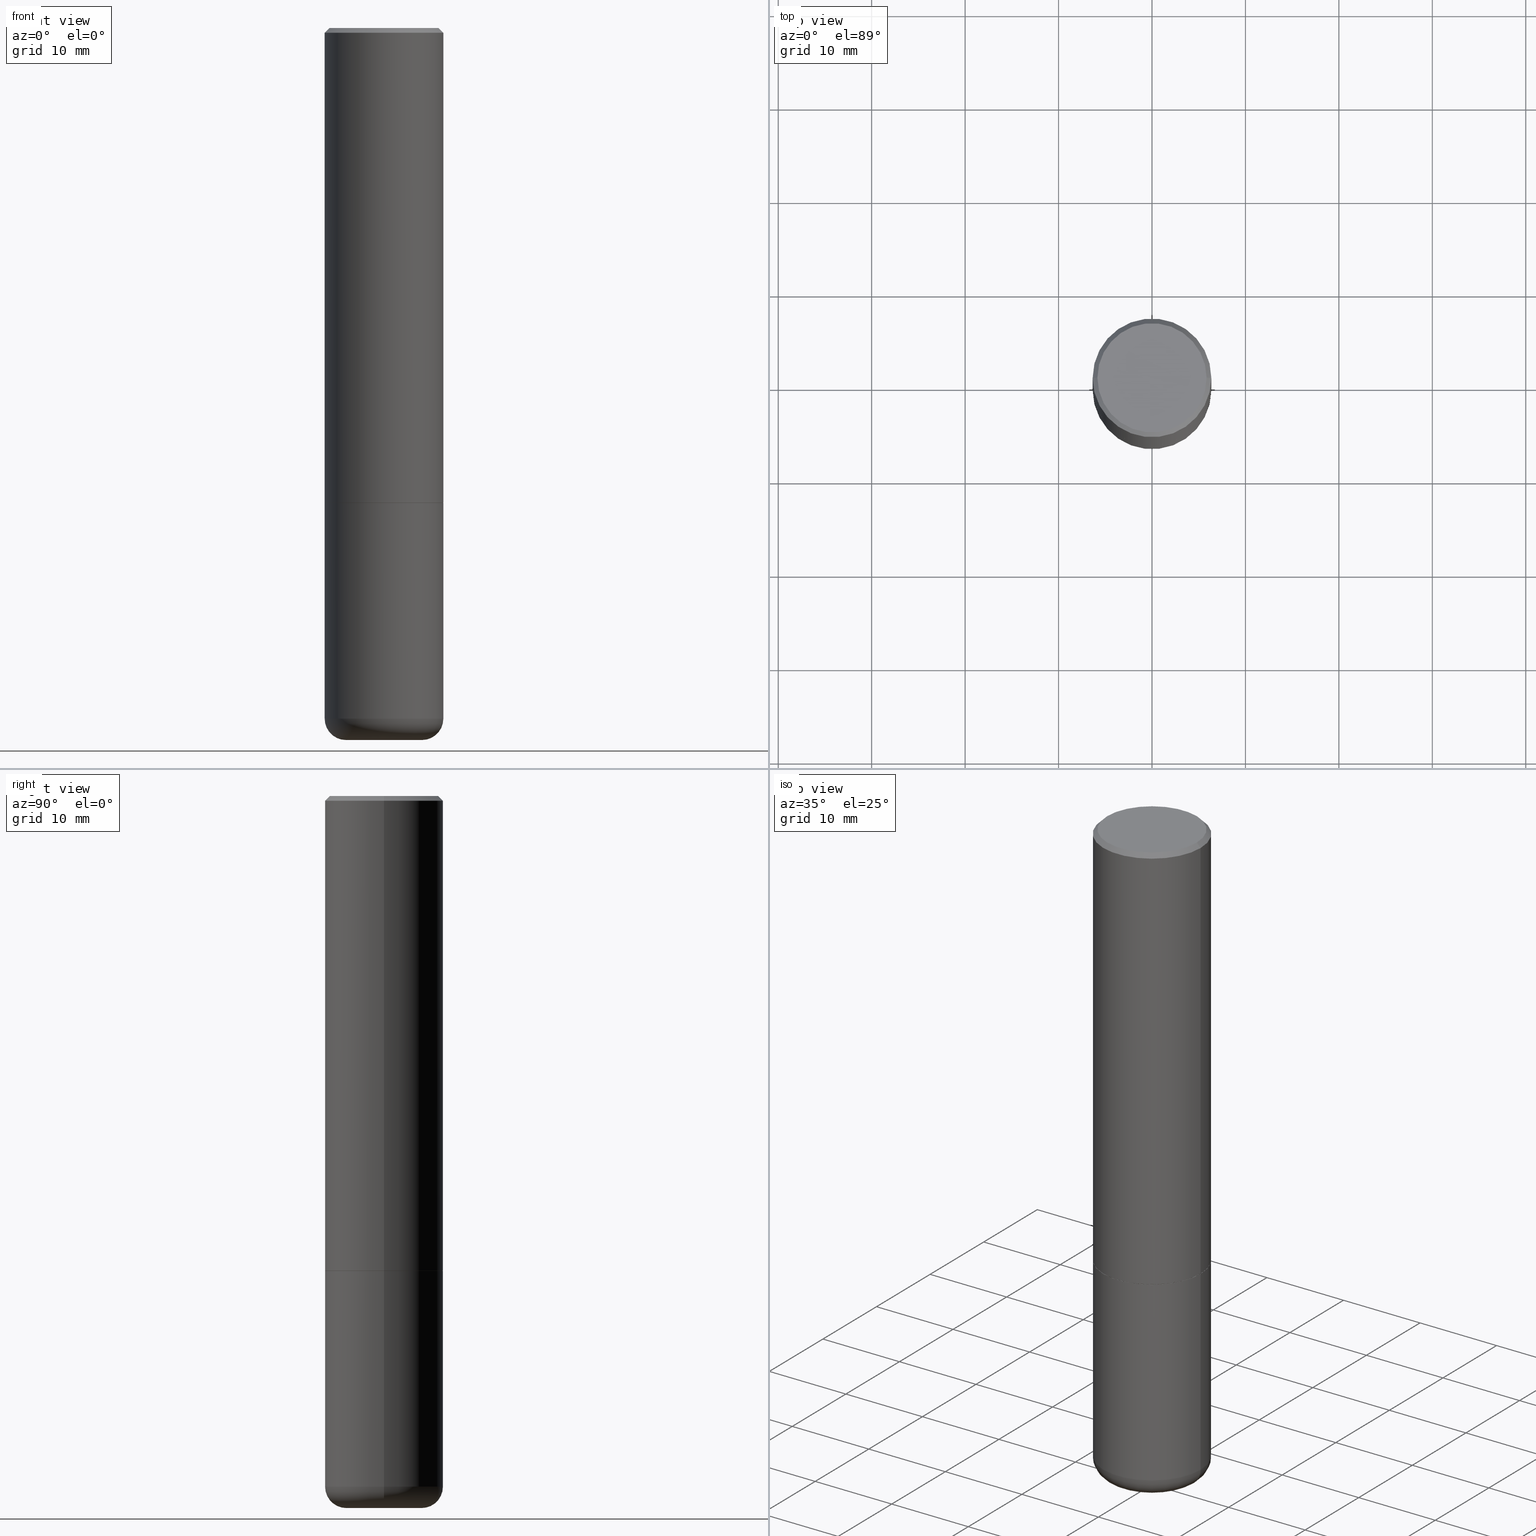
[diagram: canonical four-view strip — front | top / right | iso, engineering-drawing reading convention]
A machine part, canonical four-view strip (front | top / right | iso — engineering-drawing reading convention). The complete STEP part file that produces these views, byte-faithful:
ISO-10303-21;
HEADER;
FILE_DESCRIPTION (( 'STEP AP203' ),
    '1' );
FILE_NAME ('37348.STEP',
    '2024-03-02T00:07:58',
    ( '' ),
    ( '' ),
    'SwSTEP 2.0',
    'SolidWorks 2023',
    '' );
FILE_SCHEMA (( 'CONFIG_CONTROL_DESIGN' ));
ENDSEC;

DATA;
#1 = MANIFOLD_SOLID_BREP ( 'Body-Move/Copy2[1]', #383 ) ;
#2 = CYLINDRICAL_SURFACE ( 'NONE', #398, 0.2500000000000000000 ) ;
#3 = ORIENTED_EDGE ( 'NONE', *, *, #384, .T. ) ;
#4 = EDGE_CURVE ( 'NONE', #299, #172, #190, .T. ) ;
#5 = FACE_OUTER_BOUND ( 'NONE', #71, .T. ) ;
#6 = ORIENTED_EDGE ( 'NONE', *, *, #245, .T. ) ;
#7 = AXIS2_PLACEMENT_3D ( 'NONE', #320, #169, #9 ) ;
#8 = UNCERTAINTY_MEASURE_WITH_UNIT (LENGTH_MEASURE( 1.000000000000000082E-05 ), #261, 'distance_accuracy_value', 'NONE');
#9 = DIRECTION ( 'NONE',  ( 1.000000000000000000, -6.982962677686271444E-15, 0.000000000000000000 ) ) ;
#10 = DIRECTION ( 'NONE',  ( -1.000000000000000000, 6.982962677686266711E-15, 0.000000000000000000 ) ) ;
#11 = ADVANCED_FACE ( 'NONE', ( #219 ), #122, .T. ) ;
#12 = EDGE_LOOP ( 'NONE', ( #262, #78, #205, #334 ) ) ;
#13 = EDGE_LOOP ( 'NONE', ( #403, #67, #195, #254 ) ) ;
#14 = EDGE_CURVE ( 'NONE', #172, #52, #207, .T. ) ;
#15 = AXIS2_PLACEMENT_3D ( 'NONE', #104, #168, #32 ) ;
#16 =( LENGTH_UNIT ( ) NAMED_UNIT ( * ) SI_UNIT ( $, .METRE. ) );
#17 = ORIENTED_EDGE ( 'NONE', *, *, #243, .T. ) ;
#18 = CARTESIAN_POINT ( 'NONE',  ( -0.2500000000000000000, 1.776356839400250465E-15, -1.229733772563726445E-29 ) ) ;
#19 = ORIENTED_EDGE ( 'NONE', *, *, #173, .T. ) ;
#20 = ORIENTED_EDGE ( 'NONE', *, *, #308, .F. ) ;
#21 = CARTESIAN_POINT ( 'NONE',  ( 4.890937612370273754E-29, -6.982962677686291954E-15, -2.000000000000000444 ) ) ;
#22 = DIRECTION ( 'NONE',  ( 1.000000000000000000, -6.982962677686265133E-15, 4.883557194083112340E-29 ) ) ;
#23 = EDGE_CURVE ( 'NONE', #223, #172, #30, .T. ) ;
#24 = SECURITY_CLASSIFICATION_LEVEL ( 'unclassified' ) ;
#25 = DIRECTION ( 'NONE',  ( 0.7071067811865460184, -7.319954787623251312E-15, -0.7071067811865490160 ) ) ;
#26 = DATE_AND_TIME ( #247, #135 ) ;
#27 = CARTESIAN_POINT ( 'NONE',  ( -0.2500000000000002220, -1.748293572161903489E-15, -1.999000000000000110 ) ) ;
#28 = CIRCLE ( 'NONE', #296, 0.08999999999999964972 ) ;
#29 = APPROVAL_PERSON_ORGANIZATION ( #283, #66, #191 ) ;
#30 = LINE ( 'NONE', #381, #265 ) ;
#31 = CARTESIAN_POINT ( 'NONE',  ( -0.2299999999999995381, 1.640996229256271139E-15, 4.268512490100296524E-16 ) ) ;
#32 = DIRECTION ( 'NONE',  ( -1.000000000000000000, 6.982962677686265922E-15, -4.876176775795935793E-29 ) ) ;
#33 = AXIS2_PLACEMENT_3D ( 'NONE', #309, #316, #313 ) ;
#34 = AXIS2_PLACEMENT_3D ( 'NONE', #269, #333, #147 ) ;
#35 = DIRECTION ( 'NONE',  ( -6.982962677686266711E-15, -1.000000000000000000, 3.491481338843145583E-15 ) ) ;
#36 = CARTESIAN_POINT ( 'NONE',  ( 0.2500000000000002220, -8.725211865769017202E-15, -1.999000000000000110 ) ) ;
#37 = ORIENTED_EDGE ( 'NONE', *, *, #365, .T. ) ;
#38 = CARTESIAN_POINT ( 'NONE',  ( 0.1600000000000000033, -1.127748472446335797E-14, -2.910000000000000586 ) ) ;
#39 = EDGE_LOOP ( 'NONE', ( #140, #109, #307, #69 ) ) ;
#40 = CONICAL_SURFACE ( 'NONE', #271, 0.2489999999999999991, 0.7853981633975336552 ) ;
#41 = ADVANCED_BREP_SHAPE_REPRESENTATION ( '37348', ( #1, #264, #311 ), #294 ) ;
#42 = EDGE_CURVE ( 'NONE', #187, #52, #376, .T. ) ;
#43 =( NAMED_UNIT ( * ) PLANE_ANGLE_UNIT ( ) SI_UNIT ( $, .RADIAN. ) );
#44 = CARTESIAN_POINT ( 'NONE',  ( 0.2499999999999998335, -1.190595136545512292E-14, -2.910000000000000586 ) ) ;
#45 = VERTEX_POINT ( 'NONE', #27 ) ;
#46 = AXIS2_PLACEMENT_3D ( 'NONE', #379, #242, #273 ) ;
#47 = AXIS2_PLACEMENT_3D ( 'NONE', #38, #35, #176 ) ;
#48 = APPLICATION_CONTEXT ( 'configuration controlled 3d designs of mechanical parts and assemblies' ) ;
#49 = EDGE_CURVE ( 'NONE', #299, #45, #182, .T. ) ;
#50 =( NAMED_UNIT ( * ) SI_UNIT ( $, .STERADIAN. ) SOLID_ANGLE_UNIT ( ) );
#51 = PERSON ( 'UNSPECIFIED', 'UNSPECIFIED', 'UNSPECIFIED', ('UNSPECIFIED'), ('UNSPECIFIED'), ('UNSPECIFIED') ) ;
#52 = VERTEX_POINT ( 'NONE', #246 ) ;
#53 = ADVANCED_FACE ( 'NONE', ( #351 ), #282, .T. ) ;
#54 = AXIS2_PLACEMENT_3D ( 'NONE', #111, #206, #10 ) ;
#55 = DIRECTION ( 'NONE',  ( -2.445468806185136597E-29, 3.491481338843145583E-15, 1.000000000000000000 ) ) ;
#56 = DIRECTION ( 'NONE',  ( 1.000000000000000000, -6.982962677686268288E-15, 0.000000000000000000 ) ) ;
#57 = DIRECTION ( 'NONE',  ( -2.445468806185136597E-29, 3.491481338843145583E-15, 1.000000000000000000 ) ) ;
#58 = CARTESIAN_POINT ( 'NONE',  ( 0.2500000000000001110, -1.745740669421567467E-15, 1.219044193948984509E-29 ) ) ;
#59 = CIRCLE ( 'NONE', #98, 0.2500000000000000000 ) ;
#60 = DIRECTION ( 'NONE',  ( -2.445468806185136597E-29, 3.491481338843145583E-15, 1.000000000000000000 ) ) ;
#61 = DIRECTION ( 'NONE',  ( 1.000000000000000000, -6.982962677686265133E-15, 4.883557194083112340E-29 ) ) ;
#62 = LINE ( 'NONE', #389, #377 ) ;
#63 = ORIENTED_EDGE ( 'NONE', *, *, #14, .T. ) ;
#64 = CIRCLE ( 'NONE', #417, 0.2500000000000000000 ) ;
#65 = DIRECTION ( 'NONE',  ( -1.000000000000000000, 7.105427357600996337E-15, 0.000000000000000000 ) ) ;
#66 = APPROVAL ( #378, 'UNSPECIFIED' ) ;
#67 = ORIENTED_EDGE ( 'NONE', *, *, #371, .T. ) ;
#68 = DIRECTION ( 'NONE',  ( -2.445468806185136597E-29, 3.491481338843145583E-15, 1.000000000000000000 ) ) ;
#69 = ORIENTED_EDGE ( 'NONE', *, *, #84, .F. ) ;
#70 = FACE_OUTER_BOUND ( 'NONE', #326, .T. ) ;
#71 = EDGE_LOOP ( 'NONE', ( #6, #229 ) ) ;
#72 = CIRCLE ( 'NONE', #46, 0.2500000000000000000 ) ;
#73 = CC_DESIGN_SECURITY_CLASSIFICATION ( #251, ( #89 ) ) ;
#74 = CARTESIAN_POINT ( 'NONE',  ( 4.890937612370273754E-29, -6.982962677686291954E-15, -2.000000000000000444 ) ) ;
#75 = COORDINATED_UNIVERSAL_TIME_OFFSET ( 5, 0, .BEHIND. ) ;
#76 = APPROVAL_ROLE ( '' ) ;
#77 = ADVANCED_FACE ( 'NONE', ( #220 ), #192, .F. ) ;
#78 = ORIENTED_EDGE ( 'NONE', *, *, #123, .T. ) ;
#79 = AXIS2_PLACEMENT_3D ( 'NONE', #315, #57, #382 ) ;
#80 = CIRCLE ( 'NONE', #208, 0.1600000000000000033 ) ;
#81 = PERSON_AND_ORGANIZATION_ROLE ( 'creator' ) ;
#82 = ORIENTED_EDGE ( 'NONE', *, *, #238, .T. ) ;
#83 = ORIENTED_EDGE ( 'NONE', *, *, #352, .T. ) ;
#84 = EDGE_CURVE ( 'NONE', #52, #172, #126, .T. ) ;
#85 = CARTESIAN_POINT ( 'NONE',  ( 4.890937612370296805E-31, -6.982962677686323656E-17, -0.02000000000000009409 ) ) ;
#86 = EDGE_CURVE ( 'NONE', #267, #368, #72, .T. ) ;
#87 = COORDINATED_UNIVERSAL_TIME_OFFSET ( 5, 0, .BEHIND. ) ;
#88 = AXIS2_PLACEMENT_3D ( 'NONE', #404, #366, #331 ) ;
#89 = PRODUCT_DEFINITION_FORMATION_WITH_SPECIFIED_SOURCE ( 'ANY', '', #114, .NOT_KNOWN. ) ;
#90 = CARTESIAN_POINT ( 'NONE',  ( 0.000000000000000000, 0.000000000000000000, 0.000000000000000000 ) ) ;
#91 = PERSON_AND_ORGANIZATION_ROLE ( 'classification_officer' ) ;
#92 = CARTESIAN_POINT ( 'NONE',  ( 0.000000000000000000, 0.000000000000000000, 0.000000000000000000 ) ) ;
#93 = CALENDAR_DATE ( 2024, 1, 3 ) ;
#94 = CYLINDRICAL_SURFACE ( 'NONE', #336, 0.2500000000000001110 ) ;
#95 = ADVANCED_FACE ( 'NONE', ( #413 ), #94, .T. ) ;
#96 = CLOSED_SHELL ( 'NONE', ( #233, #95, #373, #136, #277, #291, #77, #231 ) ) ;
#97 = FACE_OUTER_BOUND ( 'NONE', #340, .T. ) ;
#98 = AXIS2_PLACEMENT_3D ( 'NONE', #74, #209, #400 ) ;
#99 = DIRECTION ( 'NONE',  ( 1.000000000000000000, -6.982962677686266711E-15, 0.000000000000000000 ) ) ;
#100 = EDGE_LOOP ( 'NONE', ( #396, #241, #19, #393 ) ) ;
#101 = EDGE_CURVE ( 'NONE', #364, #146, #105, .T. ) ;
#102 = CYLINDRICAL_SURFACE ( 'NONE', #405, 0.2500000000000001110 ) ;
#103 = CC_DESIGN_PERSON_AND_ORGANIZATION_ASSIGNMENT ( #213, #275, ( #89 ) ) ;
#104 = CARTESIAN_POINT ( 'NONE',  ( 4.890937612370273754E-29, -6.982962677686291954E-15, -2.000000000000000444 ) ) ;
#105 = CIRCLE ( 'NONE', #160, 0.2489999999999999991 ) ;
#106 = VECTOR ( 'NONE', #329, 39.37007874015748143 ) ;
#107 = DIMENSIONAL_EXPONENTS ( 1.000000000000000000, 0.000000000000000000, 0.000000000000000000, 0.000000000000000000, 0.000000000000000000, 0.000000000000000000, 0.000000000000000000 ) ;
#108 = DIRECTION ( 'NONE',  ( -2.445468806185136877E-29, 3.491481338843145188E-15, 1.000000000000000000 ) ) ;
#109 = ORIENTED_EDGE ( 'NONE', *, *, #397, .T. ) ;
#110 = CARTESIAN_POINT ( 'NONE',  ( 0.2299999999999995381, -1.681434332853596842E-15, 4.268512490100525294E-16 ) ) ;
#111 = CARTESIAN_POINT ( 'NONE',  ( 4.890937612370296805E-31, -6.982962677686323656E-17, -0.02000000000000009409 ) ) ;
#112 = EDGE_LOOP ( 'NONE', ( #324, #184 ) ) ;
#113 = AXIS2_PLACEMENT_3D ( 'NONE', #133, #230, #99 ) ;
#114 = PRODUCT ( '37348', '37348', '', ( #402 ) ) ;
#115 = APPLICATION_PROTOCOL_DEFINITION ( 'international standard', 'config_control_design', 1994, #196 ) ;
#116 = APPROVAL_DATE_TIME ( #151, #263 ) ;
#117 = VERTEX_POINT ( 'NONE', #130 ) ;
#118 = CIRCLE ( 'NONE', #7, 0.1600000000000000033 ) ;
#119 = CARTESIAN_POINT ( 'NONE',  ( 0.2489999999999999991, -8.721720384430172617E-15, -2.000000000000000444 ) ) ;
#120 = ORIENTED_EDGE ( 'NONE', *, *, #341, .T. ) ;
#121 = DESIGN_CONTEXT ( 'detailed design', #196, 'design' ) ;
#122 = PLANE ( 'NONE',  #33 ) ;
#123 = EDGE_CURVE ( 'NONE', #146, #364, #256, .T. ) ;
#124 = PERSON_AND_ORGANIZATION ( #51, #321 ) ;
#125 = CARTESIAN_POINT ( 'NONE',  ( 0.2500000000000000000, -1.745740669421566678E-15, 1.219044193948983948E-29 ) ) ;
#126 = CIRCLE ( 'NONE', #302, 0.2499999999999999722 ) ;
#127 = COORDINATED_UNIVERSAL_TIME_OFFSET ( 5, 0, .BEHIND. ) ;
#128 = DIRECTION ( 'NONE',  ( 1.000000000000000000, -6.982962677686266711E-15, 0.000000000000000000 ) ) ;
#129 = APPROVAL_DATE_TIME ( #158, #354 ) ;
#130 = CARTESIAN_POINT ( 'NONE',  ( -0.2500000000000000000, -6.795229847459672846E-15, -2.000000000000000444 ) ) ;
#131 = PERSON_AND_ORGANIZATION ( #51, #321 ) ;
#132 = DIRECTION ( 'NONE',  ( 1.000000000000000000, -6.982962677686266711E-15, 4.876176775795935793E-29 ) ) ;
#133 = CARTESIAN_POINT ( 'NONE',  ( 4.890937612370273754E-29, -6.982962677686291954E-15, -2.000000000000000444 ) ) ;
#134 = LOCAL_TIME ( 19, 7, 58.00000000000000000, #75 ) ;
#135 = LOCAL_TIME ( 19, 7, 58.00000000000000000, #87 ) ;
#136 = ADVANCED_FACE ( 'NONE', ( #97 ), #154, .T. ) ;
#137 = DIRECTION ( 'NONE',  ( 0.7071067811866078578, -2.468850131082888544E-15, 0.7071067811864871766 ) ) ;
#138 = ORIENTED_EDGE ( 'NONE', *, *, #23, .F. ) ;
#139 = FACE_OUTER_BOUND ( 'NONE', #258, .T. ) ;
#140 = ORIENTED_EDGE ( 'NONE', *, *, #341, .F. ) ;
#141 = PLANE ( 'NONE',  #15 ) ;
#142 = AXIS2_PLACEMENT_3D ( 'NONE', #343, #157, #319 ) ;
#143 = ORIENTED_EDGE ( 'NONE', *, *, #84, .T. ) ;
#144 = DIRECTION ( 'NONE',  ( -2.445468806185136597E-29, 3.491481338843145583E-15, 1.000000000000000000 ) ) ;
#145 = ORIENTED_EDGE ( 'NONE', *, *, #86, .F. ) ;
#146 = VERTEX_POINT ( 'NONE', #347 ) ;
#147 = DIRECTION ( 'NONE',  ( 1.000000000000000000, -6.982962677686266711E-15, 0.000000000000000000 ) ) ;
#148 = ORIENTED_EDGE ( 'NONE', *, *, #42, .T. ) ;
#149 = AXIS2_PLACEMENT_3D ( 'NONE', #276, #55, #22 ) ;
#150 = DIRECTION ( 'NONE',  ( -2.445468806185136877E-29, 3.491481338843145188E-15, 1.000000000000000000 ) ) ;
#151 = DATE_AND_TIME ( #211, #134 ) ;
#152 = ORIENTED_EDGE ( 'NONE', *, *, #42, .F. ) ;
#153 = APPLICATION_PROTOCOL_DEFINITION ( 'international standard', 'config_control_design', 1994, #48 ) ;
#154 = CONICAL_SURFACE ( 'NONE', #177, 0.2499999999999999722, 0.7853981633974461696 ) ;
#155 = SHAPE_DEFINITION_REPRESENTATION ( #166, #41 ) ;
#156 = DIRECTION ( 'NONE',  ( -2.438088387897960049E-29, 3.491481338843145188E-15, 1.000000000000000000 ) ) ;
#157 = DIRECTION ( 'NONE',  ( -2.445468806185136597E-29, 3.491481338843145583E-15, 1.000000000000000000 ) ) ;
#158 = DATE_AND_TIME ( #93, #345 ) ;
#159 = DIRECTION ( 'NONE',  ( 2.445468806185136597E-29, -3.491481338843145583E-15, -1.000000000000000000 ) ) ;
#160 = AXIS2_PLACEMENT_3D ( 'NONE', #348, #193, #249 ) ;
#161 = CIRCLE ( 'NONE', #88, 0.2500000000000002220 ) ;
#162 = APPROVAL_PERSON_ORGANIZATION ( #124, #354, #186 ) ;
#163 = DIRECTION ( 'NONE',  ( -2.445468806185136597E-29, 3.491481338843145583E-15, 1.000000000000000000 ) ) ;
#164 = DATE_TIME_ROLE ( 'creation_date' ) ;
#165 = DIRECTION ( 'NONE',  ( -0.7071067811865460184, 2.468850131082241283E-15, -0.7071067811865490160 ) ) ;
#166 = PRODUCT_DEFINITION_SHAPE ( 'NONE', 'NONE',  #317 ) ;
#167 = ADVANCED_FACE ( 'NONE', ( #221 ), #344, .T. ) ;
#168 = DIRECTION ( 'NONE',  ( 2.438088387897960049E-29, -3.491481338843145188E-15, -1.000000000000000000 ) ) ;
#169 = DIRECTION ( 'NONE',  ( -2.445468806185136597E-29, 3.491481338843145583E-15, 1.000000000000000000 ) ) ;
#170 = CC_DESIGN_PERSON_AND_ORGANIZATION_ASSIGNMENT ( #239, #399, ( #114 ) ) ;
#171 = FACE_OUTER_BOUND ( 'NONE', #12, .T. ) ;
#172 = VERTEX_POINT ( 'NONE', #409 ) ;
#173 = EDGE_CURVE ( 'NONE', #368, #237, #410, .T. ) ;
#174 = CARTESIAN_POINT ( 'NONE',  ( -1.043851414335219407E-44, 1.490343170380446839E-30, 4.268512490100409923E-16 ) ) ;
#175 = EDGE_CURVE ( 'NONE', #364, #299, #62, .T. ) ;
#176 = DIRECTION ( 'NONE',  ( 1.000000000000000000, -6.982962677686273810E-15, 0.000000000000000000 ) ) ;
#177 = AXIS2_PLACEMENT_3D ( 'NONE', #85, #159, #248 ) ;
#178 = ORIENTED_EDGE ( 'NONE', *, *, #4, .F. ) ;
#179 = DIRECTION ( 'NONE',  ( 1.000000000000000000, -6.982962677686270655E-15, 0.000000000000000000 ) ) ;
#180 = ADVANCED_FACE ( 'NONE', ( #257 ), #202, .T. ) ;
#181 = DIRECTION ( 'NONE',  ( -0.7071067811866078578, 7.493145998870571886E-15, 0.7071067811864871766 ) ) ;
#182 = CIRCLE ( 'NONE', #194, 0.2500000000000002220 ) ;
#183 = DIRECTION ( 'NONE',  ( 0.000000000000000000, 0.000000000000000000, 1.000000000000000000 ) ) ;
#184 = ORIENTED_EDGE ( 'NONE', *, *, #123, .F. ) ;
#185 = ORIENTED_EDGE ( 'NONE', *, *, #245, .F. ) ;
#186 = APPROVAL_ROLE ( '' ) ;
#187 = VERTEX_POINT ( 'NONE', #31 ) ;
#188 = CIRCLE ( 'NONE', #328, 0.2299999999999995381 ) ;
#189 = LOCAL_TIME ( 19, 7, 58.00000000000000000, #349 ) ;
#190 = LINE ( 'NONE', #58, #327 ) ;
#191 = APPROVAL_ROLE ( '' ) ;
#192 = PLANE ( 'NONE',  #226 ) ;
#193 = DIRECTION ( 'NONE',  ( -2.445468806185136597E-29, 3.491481338843145583E-15, 1.000000000000000000 ) ) ;
#194 = AXIS2_PLACEMENT_3D ( 'NONE', #375, #284, #56 ) ;
#195 = ORIENTED_EDGE ( 'NONE', *, *, #49, .F. ) ;
#196 = APPLICATION_CONTEXT ( 'configuration controlled 3d designs of mechanical parts and assemblies' ) ;
#197 = ADVANCED_FACE ( 'NONE', ( #204 ), #2, .T. ) ;
#198 = DIRECTION ( 'NONE',  ( 1.000000000000000000, -6.982962677686266711E-15, 4.879110437680785527E-29 ) ) ;
#199 = ADVANCED_FACE ( 'NONE', ( #139 ), #141, .F. ) ;
#200 = DIRECTION ( 'NONE',  ( 2.438088387897960049E-29, -3.491481338843145188E-15, -1.000000000000000000 ) ) ;
#201 = CARTESIAN_POINT ( 'NONE',  ( 0.1600000000000000033, -1.159171804495923808E-14, -2.999999999999999556 ) ) ;
#202 = TOROIDAL_SURFACE ( 'NONE', #411, 0.1600000000000000033, 0.08999999999999964972 ) ;
#203 = DIRECTION ( 'NONE',  ( 1.000000000000000000, -6.982962677686271444E-15, 0.000000000000000000 ) ) ;
#204 = FACE_OUTER_BOUND ( 'NONE', #235, .T. ) ;
#205 = ORIENTED_EDGE ( 'NONE', *, *, #175, .T. ) ;
#206 = DIRECTION ( 'NONE',  ( 2.445468806185136597E-29, -3.491481338843145583E-15, -1.000000000000000000 ) ) ;
#207 = CIRCLE ( 'NONE', #142, 0.2499999999999999722 ) ;
#208 = AXIS2_PLACEMENT_3D ( 'NONE', #232, #222, #203 ) ;
#209 = DIRECTION ( 'NONE',  ( -2.445468806185136597E-29, 3.491481338843145583E-15, 1.000000000000000000 ) ) ;
#210 = VERTEX_POINT ( 'NONE', #285 ) ;
#211 = CALENDAR_DATE ( 2024, 1, 3 ) ;
#212 = CARTESIAN_POINT ( 'NONE',  ( 7.116314225998749245E-29, -1.016021069603355467E-14, -2.910000000000000586 ) ) ;
#213 = PERSON_AND_ORGANIZATION ( #51, #321 ) ;
#214 = ORIENTED_EDGE ( 'NONE', *, *, #238, .F. ) ;
#215 = CIRCLE ( 'NONE', #318, 0.2299999999999995381 ) ;
#216 = PERSON_AND_ORGANIZATION ( #51, #321 ) ;
#217 = DIRECTION ( 'NONE',  ( -2.445468806185136597E-29, 3.491481338843145583E-15, 1.000000000000000000 ) ) ;
#218 = CC_DESIGN_DATE_AND_TIME_ASSIGNMENT ( #346, #164, ( #317 ) ) ;
#219 = FACE_OUTER_BOUND ( 'NONE', #338, .T. ) ;
#220 = FACE_OUTER_BOUND ( 'NONE', #112, .T. ) ;
#221 = FACE_OUTER_BOUND ( 'NONE', #358, .T. ) ;
#222 = DIRECTION ( 'NONE',  ( -2.445468806185136597E-29, 3.491481338843145583E-15, 1.000000000000000000 ) ) ;
#223 = VERTEX_POINT ( 'NONE', #110 ) ;
#224 = CARTESIAN_POINT ( 'NONE',  ( 0.000000000000000000, 0.000000000000000000, 0.000000000000000000 ) ) ;
#225 = VERTEX_POINT ( 'NONE', #201 ) ;
#226 = AXIS2_PLACEMENT_3D ( 'NONE', #21, #156, #350 ) ;
#227 = DIRECTION ( 'NONE',  ( -1.000000000000000000, 6.982962677686265922E-15, -4.876176775795935793E-29 ) ) ;
#228 = CIRCLE ( 'NONE', #47, 0.08999999999999964972 ) ;
#229 = ORIENTED_EDGE ( 'NONE', *, *, #308, .T. ) ;
#230 = DIRECTION ( 'NONE',  ( -2.445468806185136597E-29, 3.491481338843145583E-15, 1.000000000000000000 ) ) ;
#231 = ADVANCED_FACE ( 'NONE', ( #5 ), #253, .F. ) ;
#232 = CARTESIAN_POINT ( 'NONE',  ( 7.336406418555408669E-29, -1.047444401652943478E-14, -2.999999999999999556 ) ) ;
#233 = ADVANCED_FACE ( 'NONE', ( #292 ), #266, .T. ) ;
#234 = CC_DESIGN_APPROVAL ( #263, ( #317 ) ) ;
#235 = EDGE_LOOP ( 'NONE', ( #83, #3, #390, #406 ) ) ;
#236 = CC_DESIGN_APPROVAL ( #354, ( #251 ) ) ;
#237 = VERTEX_POINT ( 'NONE', #357 ) ;
#238 = EDGE_CURVE ( 'NONE', #225, #368, #228, .T. ) ;
#239 = PERSON_AND_ORGANIZATION ( #51, #321 ) ;
#240 = CC_DESIGN_PERSON_AND_ORGANIZATION_ASSIGNMENT ( #131, #407, ( #89 ) ) ;
#241 = ORIENTED_EDGE ( 'NONE', *, *, #86, .T. ) ;
#242 = DIRECTION ( 'NONE',  ( -2.445468806185136597E-29, 3.491481338843145583E-15, 1.000000000000000000 ) ) ;
#243 = EDGE_CURVE ( 'NONE', #210, #267, #28, .T. ) ;
#244 = CARTESIAN_POINT ( 'NONE',  ( -0.2499999999999999722, 1.675911042644703182E-15, -0.02000000000000009409 ) ) ;
#245 = EDGE_CURVE ( 'NONE', #187, #223, #188, .T. ) ;
#246 = CARTESIAN_POINT ( 'NONE',  ( -0.2499999999999999722, 1.675911042644703182E-15, -0.02000000000000009409 ) ) ;
#247 = CALENDAR_DATE ( 2024, 1, 3 ) ;
#248 = DIRECTION ( 'NONE',  ( -1.000000000000000000, 6.982962677686266711E-15, 0.000000000000000000 ) ) ;
#249 = DIRECTION ( 'NONE',  ( 1.000000000000000000, -6.982962677686266711E-15, 0.000000000000000000 ) ) ;
#250 = APPROVAL_PERSON_ORGANIZATION ( #306, #263, #76 ) ;
#251 = SECURITY_CLASSIFICATION ( '', '', #24 ) ;
#252 = DIRECTION ( 'NONE',  ( 7.105427357601001859E-15, 1.000000000000000000, -3.491481338843145583E-15 ) ) ;
#253 = PLANE ( 'NONE',  #286 ) ;
#254 = ORIENTED_EDGE ( 'NONE', *, *, #175, .F. ) ;
#255 = DIRECTION ( 'NONE',  ( 1.000000000000000000, -6.982962677686266711E-15, 4.876176775795935793E-29 ) ) ;
#256 = CIRCLE ( 'NONE', #79, 0.2489999999999999991 ) ;
#257 = FACE_OUTER_BOUND ( 'NONE', #387, .T. ) ;
#258 = EDGE_LOOP ( 'NONE', ( #37, #332 ) ) ;
#259 = CARTESIAN_POINT ( 'NONE',  ( 4.890937612370273754E-29, -6.982962677686291954E-15, -2.000000000000000444 ) ) ;
#260 = ORIENTED_EDGE ( 'NONE', *, *, #243, .F. ) ;
#261 =( CONVERSION_BASED_UNIT ( 'INCH', #301 ) LENGTH_UNIT ( ) NAMED_UNIT ( #107 ) );
#262 = ORIENTED_EDGE ( 'NONE', *, *, #371, .F. ) ;
#263 = APPROVAL ( #367, 'UNSPECIFIED' ) ;
#264 = MANIFOLD_SOLID_BREP ( 'Body-Move/Copy2[2]', #96 ) ;
#265 = VECTOR ( 'NONE', #25, 39.37007874015748143 ) ;
#266 = CONICAL_SURFACE ( 'NONE', #113, 0.2489999999999999991, 0.7853981633975336552 ) ;
#267 = VERTEX_POINT ( 'NONE', #386 ) ;
#268 = PERSON_AND_ORGANIZATION ( #51, #321 ) ;
#269 = CARTESIAN_POINT ( 'NONE',  ( 4.890937612370273754E-29, -6.982962677686291954E-15, -2.000000000000000444 ) ) ;
#270 = ORIENTED_EDGE ( 'NONE', *, *, #352, .F. ) ;
#271 = AXIS2_PLACEMENT_3D ( 'NONE', #259, #322, #323 ) ;
#272 = CALENDAR_DATE ( 2024, 1, 3 ) ;
#273 = DIRECTION ( 'NONE',  ( 1.000000000000000000, -6.982962677686270655E-15, 0.000000000000000000 ) ) ;
#274 = EDGE_CURVE ( 'NONE', #225, #210, #80, .T. ) ;
#275 = PERSON_AND_ORGANIZATION_ROLE ( 'creator' ) ;
#276 = CARTESIAN_POINT ( 'NONE',  ( 7.116314225998749245E-29, -1.016021069603355467E-14, -2.910000000000000586 ) ) ;
#277 = ADVANCED_FACE ( 'NONE', ( #353 ), #102, .T. ) ;
#278 = DATE_AND_TIME ( #314, #281 ) ;
#279 = CARTESIAN_POINT ( 'NONE',  ( 4.890937612370296805E-31, -6.982962677686323656E-17, -0.02000000000000009409 ) ) ;
#280 = VECTOR ( 'NONE', #150, 39.37007874015748143 ) ;
#281 = LOCAL_TIME ( 19, 7, 58.00000000000000000, #374 ) ;
#282 = CYLINDRICAL_SURFACE ( 'NONE', #310, 0.2500000000000000000 ) ;
#283 = PERSON_AND_ORGANIZATION ( #51, #321 ) ;
#284 = DIRECTION ( 'NONE',  ( -2.445468806185136597E-29, 3.491481338843145583E-15, 1.000000000000000000 ) ) ;
#285 = CARTESIAN_POINT ( 'NONE',  ( -0.1600000000000000033, -8.860714747973291991E-15, -2.999999999999999556 ) ) ;
#286 = AXIS2_PLACEMENT_3D ( 'NONE', #416, #200, #227 ) ;
#287 = LINE ( 'NONE', #418, #280 ) ;
#288 = EDGE_CURVE ( 'NONE', #210, #225, #118, .T. ) ;
#289 = DIRECTION ( 'NONE',  ( 1.000000000000000000, -6.982962677686266711E-15, 4.876176775795935793E-29 ) ) ;
#290 = ORIENTED_EDGE ( 'NONE', *, *, #274, .F. ) ;
#291 = ADVANCED_FACE ( 'NONE', ( #171 ), #40, .T. ) ;
#292 = FACE_OUTER_BOUND ( 'NONE', #13, .T. ) ;
#293 = ORIENTED_EDGE ( 'NONE', *, *, #14, .F. ) ;
#294 =( GEOMETRIC_REPRESENTATION_CONTEXT ( 3 ) GLOBAL_UNCERTAINTY_ASSIGNED_CONTEXT ( ( #8 ) ) GLOBAL_UNIT_ASSIGNED_CONTEXT ( ( #261, #43, #50 ) ) REPRESENTATION_CONTEXT ( 'NONE', 'WORKASPACE' ) );
#295 = CARTESIAN_POINT ( 'NONE',  ( -1.043851414335219407E-44, 1.490343170380446839E-30, 4.268512490100409923E-16 ) ) ;
#296 = AXIS2_PLACEMENT_3D ( 'NONE', #392, #252, #65 ) ;
#297 = CC_DESIGN_PERSON_AND_ORGANIZATION_ASSIGNMENT ( #216, #91, ( #251 ) ) ;
#298 = CARTESIAN_POINT ( 'NONE',  ( -0.2489999999999999991, -5.213711265643642498E-15, -2.000000000000000444 ) ) ;
#299 = VERTEX_POINT ( 'NONE', #36 ) ;
#300 = DIRECTION ( 'NONE',  ( 1.000000000000000000, 0.000000000000000000, 0.000000000000000000 ) ) ;
#301 = LENGTH_MEASURE_WITH_UNIT ( LENGTH_MEASURE( 0.02539999999999999897 ), #16 );
#302 = AXIS2_PLACEMENT_3D ( 'NONE', #279, #163, #128 ) ;
#303 = VECTOR ( 'NONE', #181, 39.37007874015748143 ) ;
#304 = ORIENTED_EDGE ( 'NONE', *, *, #274, .T. ) ;
#305 = CC_DESIGN_APPROVAL ( #66, ( #89 ) ) ;
#306 = PERSON_AND_ORGANIZATION ( #51, #321 ) ;
#307 = ORIENTED_EDGE ( 'NONE', *, *, #4, .T. ) ;
#308 = EDGE_CURVE ( 'NONE', #223, #187, #215, .T. ) ;
#309 = CARTESIAN_POINT ( 'NONE',  ( 1.449005363638152099E-28, -2.300140402884597367E-16, -2.999999999999999556 ) ) ;
#310 = AXIS2_PLACEMENT_3D ( 'NONE', #90, #60, #415 ) ;
#311 = AXIS2_PLACEMENT_3D ( 'NONE', #335, #183, #300 ) ;
#312 = CC_DESIGN_DATE_AND_TIME_ASSIGNMENT ( #26, #342, ( #251 ) ) ;
#313 = DIRECTION ( 'NONE',  ( -1.000000000000000000, 6.982962677686265922E-15, -4.876176775795935793E-29 ) ) ;
#314 = CALENDAR_DATE ( 2024, 1, 3 ) ;
#315 = CARTESIAN_POINT ( 'NONE',  ( 4.890937612370273754E-29, -6.982962677686291954E-15, -2.000000000000000444 ) ) ;
#316 = DIRECTION ( 'NONE',  ( 2.438088387897960049E-29, -3.491481338843145188E-15, -1.000000000000000000 ) ) ;
#317 = PRODUCT_DEFINITION ( 'UNKNOWN', '', #89, #121 ) ;
#318 = AXIS2_PLACEMENT_3D ( 'NONE', #174, #361, #198 ) ;
#319 = DIRECTION ( 'NONE',  ( 1.000000000000000000, -6.982962677686266711E-15, 0.000000000000000000 ) ) ;
#320 = CARTESIAN_POINT ( 'NONE',  ( 7.336406418555408669E-29, -1.047444401652943478E-14, -2.999999999999999556 ) ) ;
#321 = ORGANIZATION ( 'UNSPECIFIED', 'UNSPECIFIED', '' ) ;
#322 = DIRECTION ( 'NONE',  ( -2.445468806185136597E-29, 3.491481338843145583E-15, 1.000000000000000000 ) ) ;
#323 = DIRECTION ( 'NONE',  ( 1.000000000000000000, -6.982962677686266711E-15, 0.000000000000000000 ) ) ;
#324 = ORIENTED_EDGE ( 'NONE', *, *, #101, .F. ) ;
#325 = CARTESIAN_POINT ( 'NONE',  ( 7.116314225998749245E-29, -1.016021069603355467E-14, -2.910000000000000586 ) ) ;
#326 = EDGE_LOOP ( 'NONE', ( #20, #360, #63, #152 ) ) ;
#327 = VECTOR ( 'NONE', #408, 39.37007874015748143 ) ;
#328 = AXIS2_PLACEMENT_3D ( 'NONE', #295, #68, #359 ) ;
#329 = DIRECTION ( 'NONE',  ( -2.445468806185136877E-29, 3.491481338843145188E-15, 1.000000000000000000 ) ) ;
#330 = ORIENTED_EDGE ( 'NONE', *, *, #288, .F. ) ;
#331 = DIRECTION ( 'NONE',  ( 1.000000000000000000, -6.982962677686268288E-15, 0.000000000000000000 ) ) ;
#332 = ORIENTED_EDGE ( 'NONE', *, *, #388, .T. ) ;
#333 = DIRECTION ( 'NONE',  ( -2.445468806185136597E-29, 3.491481338843145583E-15, 1.000000000000000000 ) ) ;
#334 = ORIENTED_EDGE ( 'NONE', *, *, #397, .F. ) ;
#335 = CARTESIAN_POINT ( 'NONE',  ( 0.000000000000000000, 0.000000000000000000, 0.000000000000000000 ) ) ;
#336 = AXIS2_PLACEMENT_3D ( 'NONE', #92, #217, #132 ) ;
#337 = CONICAL_SURFACE ( 'NONE', #54, 0.2499999999999999722, 0.7853981633974461696 ) ;
#338 = EDGE_LOOP ( 'NONE', ( #290, #330 ) ) ;
#339 = PRODUCT_RELATED_PRODUCT_CATEGORY ( 'detail', '', ( #114 ) ) ;
#340 = EDGE_LOOP ( 'NONE', ( #138, #185, #148, #143 ) ) ;
#341 = EDGE_CURVE ( 'NONE', #45, #52, #287, .T. ) ;
#342 = DATE_TIME_ROLE ( 'classification_date' ) ;
#343 = CARTESIAN_POINT ( 'NONE',  ( 4.890937612370296805E-31, -6.982962677686323656E-17, -0.02000000000000009409 ) ) ;
#344 = TOROIDAL_SURFACE ( 'NONE', #149, 0.1600000000000000033, 0.08999999999999964972 ) ;
#345 = LOCAL_TIME ( 19, 7, 58.00000000000000000, #127 ) ;
#346 = DATE_AND_TIME ( #272, #189 ) ;
#347 = CARTESIAN_POINT ( 'NONE',  ( -0.2489999999999999991, -5.208412811295419307E-15, -2.000000000000000444 ) ) ;
#348 = CARTESIAN_POINT ( 'NONE',  ( 4.890937612370273754E-29, -6.982962677686291954E-15, -2.000000000000000444 ) ) ;
#349 = COORDINATED_UNIVERSAL_TIME_OFFSET ( 5, 0, .BEHIND. ) ;
#350 = DIRECTION ( 'NONE',  ( 1.000000000000000000, -6.982962677686265922E-15, 4.876176775795935793E-29 ) ) ;
#351 = FACE_OUTER_BOUND ( 'NONE', #100, .T. ) ;
#352 = EDGE_CURVE ( 'NONE', #368, #267, #64, .T. ) ;
#353 = FACE_OUTER_BOUND ( 'NONE', #39, .T. ) ;
#354 = APPROVAL ( #380, 'UNSPECIFIED' ) ;
#355 = DIRECTION ( 'NONE',  ( -2.445468806185136597E-29, 3.491481338843145583E-15, 1.000000000000000000 ) ) ;
#356 = VECTOR ( 'NONE', #165, 39.37007874015748143 ) ;
#357 = CARTESIAN_POINT ( 'NONE',  ( 0.2500000000000000000, -8.728703347107858632E-15, -2.000000000000000444 ) ) ;
#358 = EDGE_LOOP ( 'NONE', ( #260, #372, #82, #145 ) ) ;
#359 = DIRECTION ( 'NONE',  ( 1.000000000000000000, -6.982962677686266711E-15, 4.879110437680785527E-29 ) ) ;
#360 = ORIENTED_EDGE ( 'NONE', *, *, #23, .T. ) ;
#361 = DIRECTION ( 'NONE',  ( -2.445468806185136597E-29, 3.491481338843145583E-15, 1.000000000000000000 ) ) ;
#362 = VECTOR ( 'NONE', #108, 39.37007874015748143 ) ;
#363 = DIRECTION ( 'NONE',  ( -2.445468806185136597E-29, 3.491481338843145583E-15, 1.000000000000000000 ) ) ;
#364 = VERTEX_POINT ( 'NONE', #119 ) ;
#365 = EDGE_CURVE ( 'NONE', #237, #117, #59, .T. ) ;
#366 = DIRECTION ( 'NONE',  ( -2.445468806185136597E-29, 3.491481338843145583E-15, 1.000000000000000000 ) ) ;
#367 = APPROVAL_STATUS ( 'not_yet_approved' ) ;
#368 = VERTEX_POINT ( 'NONE', #44 ) ;
#369 = LINE ( 'NONE', #18, #106 ) ;
#370 = ORIENTED_EDGE ( 'NONE', *, *, #49, .T. ) ;
#371 = EDGE_CURVE ( 'NONE', #146, #45, #395, .T. ) ;
#372 = ORIENTED_EDGE ( 'NONE', *, *, #288, .T. ) ;
#373 = ADVANCED_FACE ( 'NONE', ( #70 ), #337, .T. ) ;
#374 = COORDINATED_UNIVERSAL_TIME_OFFSET ( 5, 0, .BEHIND. ) ;
#375 = CARTESIAN_POINT ( 'NONE',  ( 4.888492143564088712E-29, -6.979471196347448158E-15, -1.999000000000000110 ) ) ;
#376 = LINE ( 'NONE', #244, #356 ) ;
#377 = VECTOR ( 'NONE', #137, 39.37007874015748143 ) ;
#378 = APPROVAL_STATUS ( 'not_yet_approved' ) ;
#379 = CARTESIAN_POINT ( 'NONE',  ( 7.116314225998749245E-29, -1.016021069603355467E-14, -2.910000000000000586 ) ) ;
#380 = APPROVAL_STATUS ( 'not_yet_approved' ) ;
#381 = CARTESIAN_POINT ( 'NONE',  ( 0.2499999999999999722, -1.784954126219746189E-15, -0.02000000000000009409 ) ) ;
#382 = DIRECTION ( 'NONE',  ( 1.000000000000000000, -6.982962677686266711E-15, 0.000000000000000000 ) ) ;
#383 = CLOSED_SHELL ( 'NONE', ( #197, #180, #199, #53, #167, #11 ) ) ;
#384 = EDGE_CURVE ( 'NONE', #267, #117, #369, .T. ) ;
#385 = CIRCLE ( 'NONE', #34, 0.2500000000000000000 ) ;
#386 = CARTESIAN_POINT ( 'NONE',  ( -0.2499999999999998335, -8.383853856633305780E-15, -2.910000000000000586 ) ) ;
#387 = EDGE_LOOP ( 'NONE', ( #304, #17, #270, #214 ) ) ;
#388 = EDGE_CURVE ( 'NONE', #117, #237, #385, .T. ) ;
#389 = CARTESIAN_POINT ( 'NONE',  ( 0.2489999999999999991, -8.721720384430172617E-15, -2.000000000000000444 ) ) ;
#390 = ORIENTED_EDGE ( 'NONE', *, *, #365, .F. ) ;
#391 = CARTESIAN_POINT ( 'NONE',  ( 0.000000000000000000, 0.000000000000000000, 0.000000000000000000 ) ) ;
#392 = CARTESIAN_POINT ( 'NONE',  ( -0.1600000000000000033, -9.023342318817394938E-15, -2.910000000000000586 ) ) ;
#393 = ORIENTED_EDGE ( 'NONE', *, *, #388, .F. ) ;
#394 = DIRECTION ( 'NONE',  ( -2.445468806185136597E-29, 3.491481338843145583E-15, 1.000000000000000000 ) ) ;
#395 = LINE ( 'NONE', #298, #303 ) ;
#396 = ORIENTED_EDGE ( 'NONE', *, *, #384, .F. ) ;
#397 = EDGE_CURVE ( 'NONE', #45, #299, #161, .T. ) ;
#398 = AXIS2_PLACEMENT_3D ( 'NONE', #391, #355, #255 ) ;
#399 = PERSON_AND_ORGANIZATION_ROLE ( 'design_owner' ) ;
#400 = DIRECTION ( 'NONE',  ( 1.000000000000000000, -6.982962677686266711E-15, 0.000000000000000000 ) ) ;
#401 = EDGE_LOOP ( 'NONE', ( #370, #120, #293, #178 ) ) ;
#402 = MECHANICAL_CONTEXT ( 'NONE', #48, 'mechanical' ) ;
#403 = ORIENTED_EDGE ( 'NONE', *, *, #101, .T. ) ;
#404 = CARTESIAN_POINT ( 'NONE',  ( 4.888492143564088712E-29, -6.979471196347448158E-15, -1.999000000000000110 ) ) ;
#405 = AXIS2_PLACEMENT_3D ( 'NONE', #224, #144, #289 ) ;
#406 = ORIENTED_EDGE ( 'NONE', *, *, #173, .F. ) ;
#407 = PERSON_AND_ORGANIZATION_ROLE ( 'design_supplier' ) ;
#408 = DIRECTION ( 'NONE',  ( -2.445468806185136877E-29, 3.491481338843145188E-15, 1.000000000000000000 ) ) ;
#409 = CARTESIAN_POINT ( 'NONE',  ( 0.2499999999999999722, -1.784954126219746189E-15, -0.02000000000000009409 ) ) ;
#410 = LINE ( 'NONE', #125, #362 ) ;
#411 = AXIS2_PLACEMENT_3D ( 'NONE', #325, #394, #61 ) ;
#412 = CC_DESIGN_PERSON_AND_ORGANIZATION_ASSIGNMENT ( #268, #81, ( #317 ) ) ;
#413 = FACE_OUTER_BOUND ( 'NONE', #401, .T. ) ;
#414 = APPROVAL_DATE_TIME ( #278, #66 ) ;
#415 = DIRECTION ( 'NONE',  ( 1.000000000000000000, -6.982962677686266711E-15, 4.876176775795935793E-29 ) ) ;
#416 = CARTESIAN_POINT ( 'NONE',  ( 1.606081415867837912E-15, 0.2299999999999995381, -5.896150834289013687E-16 ) ) ;
#417 = AXIS2_PLACEMENT_3D ( 'NONE', #212, #363, #179 ) ;
#418 = CARTESIAN_POINT ( 'NONE',  ( -0.2500000000000001110, 1.776356839400251254E-15, -1.229733772563727006E-29 ) ) ;
ENDSEC;
END-ISO-10303-21;
